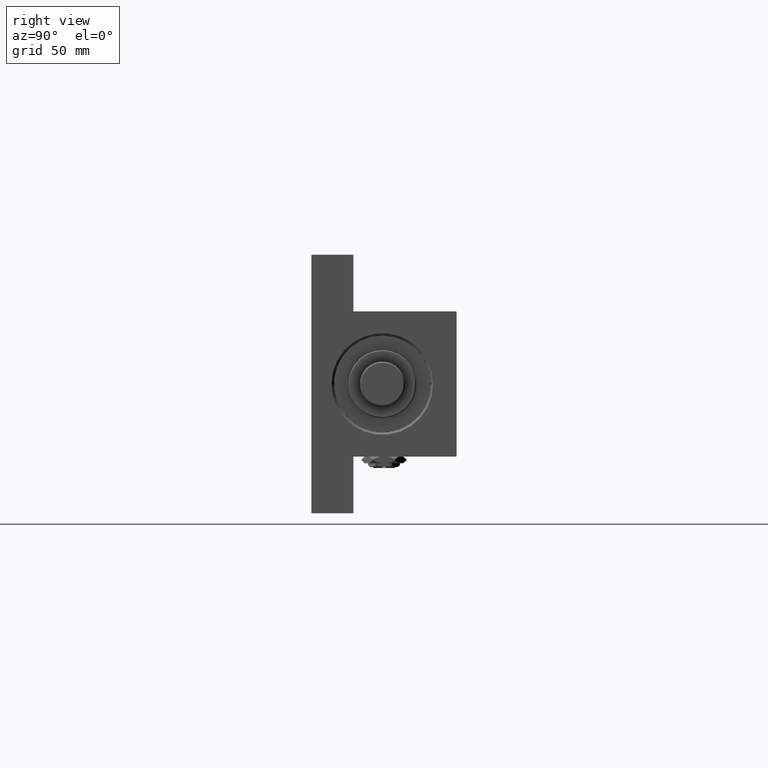
[diagram: clean part render]
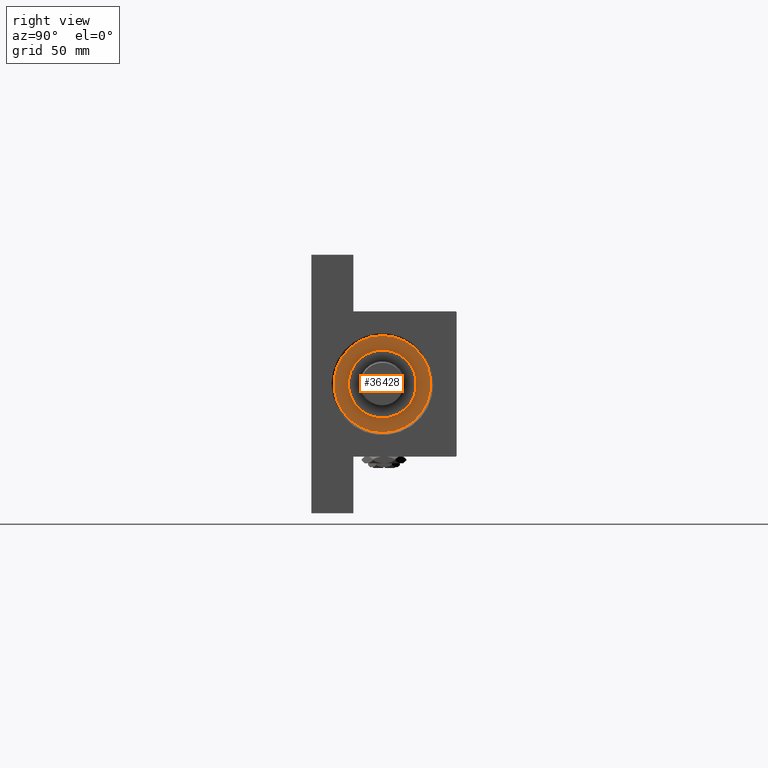
[diagram: same view with one face highlighted and labeled with its STEP entity id]
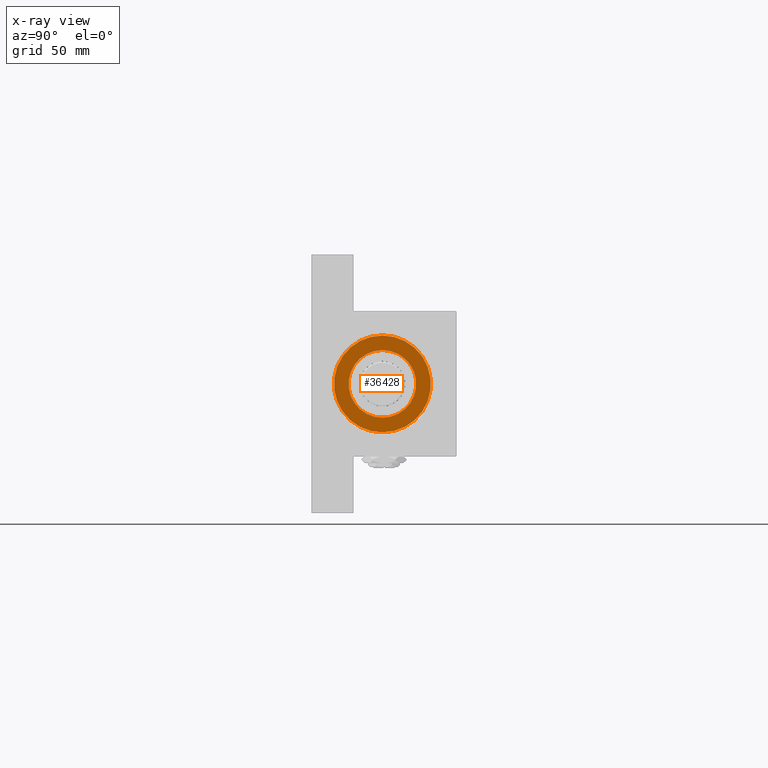
[diagram: x-ray of the same camera — body ghosted, the highlighted face saturated]
A machine part, right view. The second image highlights one B-rep face of the part: STEP entity #36428.
The next image is the same camera in x-ray: the body ghosted, the highlighted face saturated — about 0% of this face is hidden behind the body in this view.
In plain terms, the highlighted planar face has unit normal (1, 0, 0).
Its self-contained STEP definition (entity closure, byte-faithful):
#1591 = DIRECTION ( 'NONE',  ( 0.000000000000000000, 0.000000000000000000, 1.000000000000000000 ) ) ;
#2793 = CARTESIAN_POINT ( 'NONE',  ( -30.00000000000000000, 0.000000000000000000, 28.69999999999999929 ) ) ;
#3567 = CIRCLE ( 'NONE', #31103, 30.00000000000000000 ) ;
#3917 = DIRECTION ( 'NONE',  ( 1.000000000000000000, 0.000000000000000000, 0.000000000000000000 ) ) ;
#3950 = DIRECTION ( 'NONE',  ( 1.000000000000000000, 0.000000000000000000, 0.000000000000000000 ) ) ;
#4456 = CARTESIAN_POINT ( 'NONE',  ( 0.000000000000000000, 0.000000000000000000, 28.69999999999999929 ) ) ;
#4601 = VERTEX_POINT ( 'NONE', #13711 ) ;
#5202 = AXIS2_PLACEMENT_3D ( 'NONE', #26878, #27629, #8089 ) ;
#5884 = ORIENTED_EDGE ( 'NONE', *, *, #35835, .T. ) ;
#6137 = DIRECTION ( 'NONE',  ( 1.000000000000000000, 0.000000000000000000, 0.000000000000000000 ) ) ;
#8089 = DIRECTION ( 'NONE',  ( 1.000000000000000000, 0.000000000000000000, -0.000000000000000000 ) ) ;
#8098 = VERTEX_POINT ( 'NONE', #2793 ) ;
#10225 = VERTEX_POINT ( 'NONE', #36465 ) ;
#11405 = FACE_BOUND ( 'NONE', #42300, .T. ) ;
#12305 = CARTESIAN_POINT ( 'NONE',  ( 0.000000000000000000, 0.000000000000000000, 28.69999999999999929 ) ) ;
#13711 = CARTESIAN_POINT ( 'NONE',  ( -21.00000000000000000, 0.000000000000000000, 28.69999999999999929 ) ) ;
#14364 = AXIS2_PLACEMENT_3D ( 'NONE', #12305, #23734, #3917 ) ;
#14497 = EDGE_LOOP ( 'NONE', ( #5884, #35512 ) ) ;
#17140 = AXIS2_PLACEMENT_3D ( 'NONE', #4456, #38703, #3950 ) ;
#19561 = CIRCLE ( 'NONE', #17140, 21.00000000000000000 ) ;
#20407 = AXIS2_PLACEMENT_3D ( 'NONE', #33575, #33324, #21428 ) ;
#21428 = DIRECTION ( 'NONE',  ( 1.000000000000000000, 0.000000000000000000, 0.000000000000000000 ) ) ;
#21657 = CIRCLE ( 'NONE', #14364, 21.00000000000000000 ) ;
#23734 = DIRECTION ( 'NONE',  ( 0.000000000000000000, 0.000000000000000000, 1.000000000000000000 ) ) ;
#26240 = EDGE_CURVE ( 'NONE', #4601, #10225, #19561, .T. ) ;
#26530 = EDGE_CURVE ( 'NONE', #29161, #8098, #35772, .T. ) ;
#26878 = CARTESIAN_POINT ( 'NONE',  ( 0.000000000000000000, 0.000000000000000000, 28.69999999999999929 ) ) ;
#27629 = DIRECTION ( 'NONE',  ( 0.000000000000000000, 0.000000000000000000, 1.000000000000000000 ) ) ;
#29161 = VERTEX_POINT ( 'NONE', #43532 ) ;
#31103 = AXIS2_PLACEMENT_3D ( 'NONE', #37077, #1591, #6137 ) ;
#33324 = DIRECTION ( 'NONE',  ( 0.000000000000000000, 0.000000000000000000, 1.000000000000000000 ) ) ;
#33575 = CARTESIAN_POINT ( 'NONE',  ( 0.000000000000000000, 0.000000000000000000, 28.69999999999999929 ) ) ;
#34463 = FACE_OUTER_BOUND ( 'NONE', #14497, .T. ) ;
#34982 = ORIENTED_EDGE ( 'NONE', *, *, #43896, .F. ) ;
#35512 = ORIENTED_EDGE ( 'NONE', *, *, #26530, .T. ) ;
#35772 = CIRCLE ( 'NONE', #20407, 30.00000000000000000 ) ;
#35835 = EDGE_CURVE ( 'NONE', #8098, #29161, #3567, .T. ) ;
#36428 = ADVANCED_FACE ( 'NONE', ( #11405, #34463 ), #49906, .T. ) ;
#36465 = CARTESIAN_POINT ( 'NONE',  ( 21.00000000000000000, 2.571758278209441661E-15, 28.69999999999999929 ) ) ;
#37077 = CARTESIAN_POINT ( 'NONE',  ( 0.000000000000000000, 0.000000000000000000, 28.69999999999999929 ) ) ;
#38703 = DIRECTION ( 'NONE',  ( 0.000000000000000000, 0.000000000000000000, 1.000000000000000000 ) ) ;
#42300 = EDGE_LOOP ( 'NONE', ( #44195, #34982 ) ) ;
#43532 = CARTESIAN_POINT ( 'NONE',  ( 30.00000000000000000, 3.673940397442059178E-15, 28.69999999999999929 ) ) ;
#43896 = EDGE_CURVE ( 'NONE', #10225, #4601, #21657, .T. ) ;
#44195 = ORIENTED_EDGE ( 'NONE', *, *, #26240, .F. ) ;
#49906 = PLANE ( 'NONE',  #5202 ) ;